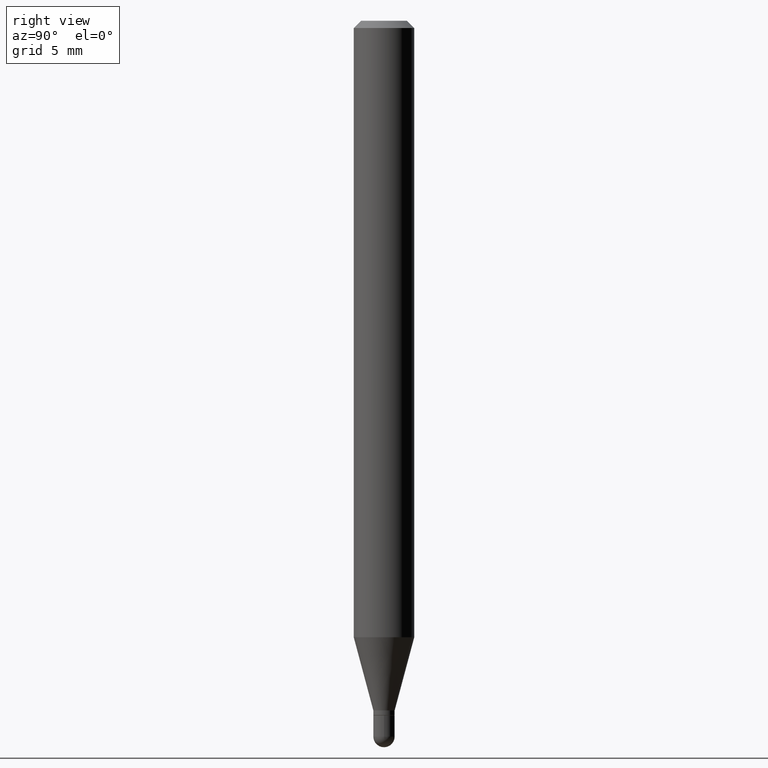
[diagram: clean part render]
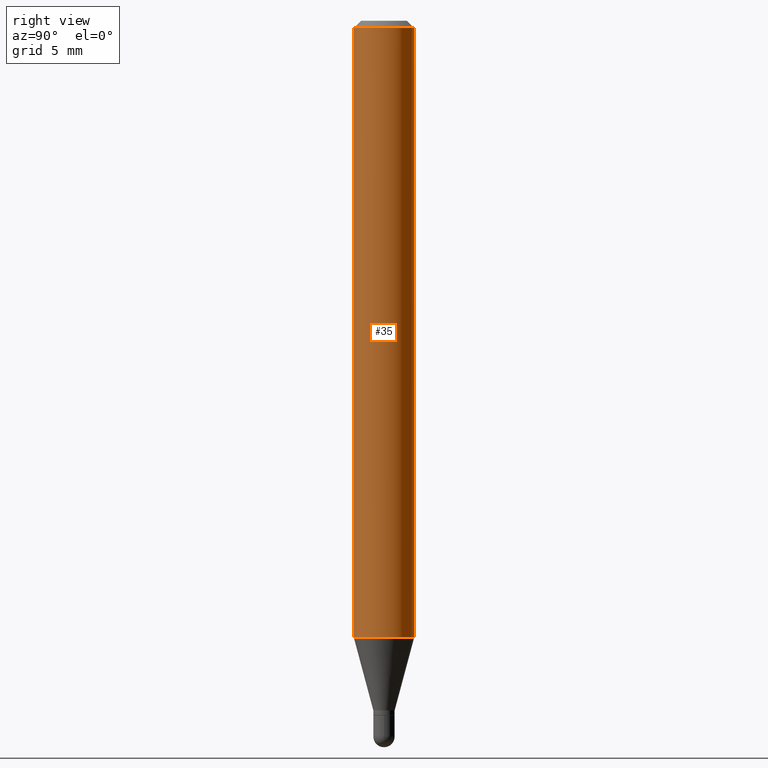
[diagram: same view with one face highlighted and labeled with its STEP entity id]
A machine part, right view. The second image highlights one B-rep face of the part: STEP entity #35.
In plain terms, the highlighted cylindrical surface (edge-blend (fillet) strip) has radius 1.5875 mm, axis along (-0, 0, 1).
Its self-contained STEP definition (entity closure, byte-faithful):
#13 = EDGE_LOOP ( 'NONE', ( #453, #57, #212, #45 ) ) ;
#35 = ADVANCED_FACE ( 'NONE', ( #217 ), #331, .T. ) ;
#39 = CARTESIAN_POINT ( 'NONE',  ( 4.440892098500625669E-16, 0.06250000000000000000, -2.182181565982779340E-16 ) ) ;
#45 = ORIENTED_EDGE ( 'NONE', *, *, #247, .F. ) ;
#48 = VECTOR ( 'NONE', #350, 39.37007874015748143 ) ;
#56 = EDGE_CURVE ( 'NONE', #319, #201, #344, .T. ) ;
#57 = ORIENTED_EDGE ( 'NONE', *, *, #56, .T. ) ;
#58 = CARTESIAN_POINT ( 'NONE',  ( 4.440892098500938748E-16, 0.06249999999999995143, -0.01500000000000054588 ) ) ;
#60 = DIRECTION ( 'NONE',  ( -2.445462405092277460E-29, 3.491490505572446944E-15, 1.000000000000000000 ) ) ;
#127 = AXIS2_PLACEMENT_3D ( 'NONE', #265, #197, #283 ) ;
#141 = DIRECTION ( 'NONE',  ( -6.982962677686265922E-15, -1.000000000000000000, 3.491490505572446944E-15 ) ) ;
#142 = LINE ( 'NONE', #412, #150 ) ;
#150 = VECTOR ( 'NONE', #60, 39.37007874015748143 ) ;
#167 = CARTESIAN_POINT ( 'NONE',  ( 3.112711572127344599E-29, -4.444150471517067241E-15, -1.272851942293461214 ) ) ;
#193 = CIRCLE ( 'NONE', #293, 0.06250000000000000000 ) ;
#197 = DIRECTION ( 'NONE',  ( -2.445462405092277740E-29, 3.491490505572446944E-15, 1.000000000000000000 ) ) ;
#201 = VERTEX_POINT ( 'NONE', #58 ) ;
#212 = ORIENTED_EDGE ( 'NONE', *, *, #298, .F. ) ;
#217 = FACE_OUTER_BOUND ( 'NONE', #13, .T. ) ;
#247 = EDGE_CURVE ( 'NONE', #370, #441, #142, .T. ) ;
#265 = CARTESIAN_POINT ( 'NONE',  ( 3.668193607638497220E-31, -5.237235758358785737E-17, -0.01500000000000032904 ) ) ;
#283 = DIRECTION ( 'NONE',  ( -6.982962677686265922E-15, -1.000000000000000000, 3.483106191921935554E-15 ) ) ;
#293 = AXIS2_PLACEMENT_3D ( 'NONE', #167, #317, #469 ) ;
#298 = EDGE_CURVE ( 'NONE', #441, #201, #347, .T. ) ;
#309 = EDGE_CURVE ( 'NONE', #370, #319, #193, .T. ) ;
#312 = AXIS2_PLACEMENT_3D ( 'NONE', #411, #497, #141 ) ;
#317 = DIRECTION ( 'NONE',  ( -2.445462405092277740E-29, 3.491490505572446944E-15, 1.000000000000000000 ) ) ;
#319 = VERTEX_POINT ( 'NONE', #353 ) ;
#331 = CYLINDRICAL_SURFACE ( 'NONE', #312, 0.06250000000000000000 ) ;
#341 = CARTESIAN_POINT ( 'NONE',  ( -4.364351673553912750E-16, -0.06250000000000005551, -0.01500000000000011047 ) ) ;
#344 = LINE ( 'NONE', #39, #48 ) ;
#347 = CIRCLE ( 'NONE', #127, 0.06250000000000000000 ) ;
#350 = DIRECTION ( 'NONE',  ( -2.445462405092277460E-29, 3.491490505572446944E-15, 1.000000000000000000 ) ) ;
#353 = CARTESIAN_POINT ( 'NONE',  ( 4.440892098500934804E-16, 0.06249999999999553135, -1.272851942293461436 ) ) ;
#370 = VERTEX_POINT ( 'NONE', #467 ) ;
#411 = CARTESIAN_POINT ( 'NONE',  ( 0.000000000000000000, 0.000000000000000000, 0.000000000000000000 ) ) ;
#412 = CARTESIAN_POINT ( 'NONE',  ( -4.364351673553916201E-16, -0.06250000000000000000, 2.182181565982779340E-16 ) ) ;
#441 = VERTEX_POINT ( 'NONE', #341 ) ;
#453 = ORIENTED_EDGE ( 'NONE', *, *, #309, .T. ) ;
#467 = CARTESIAN_POINT ( 'NONE',  ( -4.364351673553605587E-16, -0.06250000000000446865, -1.272851942293460770 ) ) ;
#469 = DIRECTION ( 'NONE',  ( -6.982962677686265922E-15, -1.000000000000000000, 4.370956789862821150E-15 ) ) ;
#497 = DIRECTION ( 'NONE',  ( -2.445462405092277740E-29, 3.491490505572446944E-15, 1.000000000000000000 ) ) ;